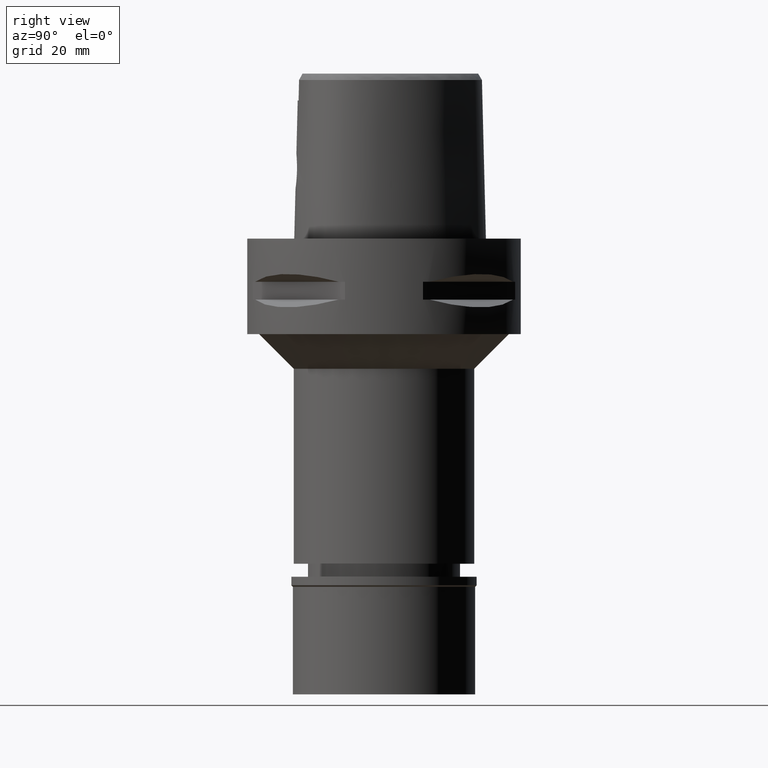
[diagram: clean part render]
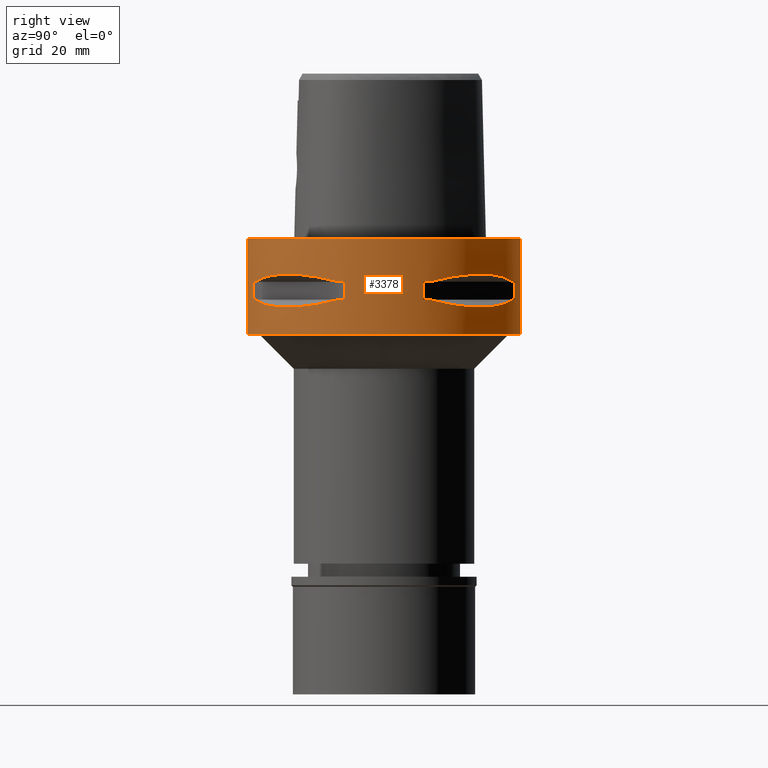
[diagram: same view with one face highlighted and labeled with its STEP entity id]
A machine part, right view. The second image highlights one B-rep face of the part: STEP entity #3378.
In plain terms, the highlighted cylindrical surface (partial cylindrical patch) has radius 31.5 mm, axis along (0, 0, -1).
Its self-contained STEP definition (entity closure, byte-faithful):
#20 = VERTEX_POINT ( 'NONE', #1837 ) ;
#29 = CARTESIAN_POINT ( 'NONE',  ( 13.25636937905766999, -28.62019653468112068, -14.74888225542022369 ) ) ;
#32 = CARTESIAN_POINT ( 'NONE',  ( 10.44775724750000023, -29.71690375017999841, -9.950000000002001244 ) ) ;
#69 = EDGE_CURVE ( 'NONE', #4559, #3506, #4363, .T. ) ;
#72 = CARTESIAN_POINT ( 'NONE',  ( 30.19251670572000279, -8.981198972016999349, -14.05000000000000071 ) ) ;
#127 = CARTESIAN_POINT ( 'NONE',  ( 26.42800887047804181, -17.14106442934815533, -15.43984550238795350 ) ) ;
#162 = EDGE_CURVE ( 'NONE', #4559, #481, #1147, .T. ) ;
#179 = AXIS2_PLACEMENT_3D ( 'NONE', #3911, #1974, #3838 ) ;
#206 = CARTESIAN_POINT ( 'NONE',  ( 10.44775724750000023, 29.71690375017999841, -9.950000000002001244 ) ) ;
#228 = CARTESIAN_POINT ( 'NONE',  ( 26.64486562695897121, 16.80193241490862022, -15.38992683736031708 ) ) ;
#230 = ORIENTED_EDGE ( 'NONE', *, *, #2636, .T. ) ;
#241 = ORIENTED_EDGE ( 'NONE', *, *, #1928, .F. ) ;
#269 = VERTEX_POINT ( 'NONE', #3351 ) ;
#280 = DIRECTION ( 'NONE',  ( 0.0000000000000000000, 0.0000000000000000000, 1.000000000000000000 ) ) ;
#363 = ORIENTED_EDGE ( 'NONE', *, *, #3219, .F. ) ;
#476 = CARTESIAN_POINT ( 'NONE',  ( 29.31542262584231651, 11.58970337495594194, -14.35229357167384912 ) ) ;
#481 = VERTEX_POINT ( 'NONE', #2387 ) ;
#489 = CARTESIAN_POINT ( 'NONE',  ( 23.08532645888790213, -21.46242677077769656, -15.83938991065623014 ) ) ;
#533 = VERTEX_POINT ( 'NONE', #4693 ) ;
#558 = CARTESIAN_POINT ( 'NONE',  ( 30.19251670572000279, 8.981198972019999616, -9.950000000000001066 ) ) ;
#566 = AXIS2_PLACEMENT_3D ( 'NONE', #3277, #2902, #4940 ) ;
#627 = CARTESIAN_POINT ( 'NONE',  ( 0.0000000000000000000, 31.50000000000000000, 0.0000000000000000000 ) ) ;
#644 = VECTOR ( 'NONE', #3933, 1000.000000000000000 ) ;
#654 = CARTESIAN_POINT ( 'NONE',  ( 27.11872488589068553, 16.03138450079309862, -15.26880420108148506 ) ) ;
#656 = DIRECTION ( 'NONE',  ( 0.0000000000000000000, 1.000000000000000000, 0.0000000000000000000 ) ) ;
#663 = CARTESIAN_POINT ( 'NONE',  ( 27.86285265926851551, -14.89252659056515427, -15.10765629751784012 ) ) ;
#679 = CARTESIAN_POINT ( 'NONE',  ( 29.71690375017999841, 10.44775724750000023, -14.05000000000000071 ) ) ;
#757 = CARTESIAN_POINT ( 'NONE',  ( 18.81455742163210587, -25.37277178168280756, -8.309746333130378915 ) ) ;
#780 = CARTESIAN_POINT ( 'NONE',  ( 10.44775724750000023, -29.71690375017999841, -14.05000000000000071 ) ) ;
#799 = CARTESIAN_POINT ( 'NONE',  ( 0.0000000000000000000, 31.50000000000000000, 0.0000000000000000000 ) ) ;
#803 = CARTESIAN_POINT ( 'NONE',  ( 16.03138450079309862, -27.11872488589068553, -15.26880420108148506 ) ) ;
#813 = ORIENTED_EDGE ( 'NONE', *, *, #4564, .T. ) ;
#846 = VERTEX_POINT ( 'NONE', #2801 ) ;
#869 = ORIENTED_EDGE ( 'NONE', *, *, #3529, .T. ) ;
#954 = CARTESIAN_POINT ( 'NONE',  ( 20.65093790435025767, -23.89673728057072211, -15.83935804902266931 ) ) ;
#991 = EDGE_CURVE ( 'NONE', #4315, #3935, #4417, .T. ) ;
#1017 = CARTESIAN_POINT ( 'NONE',  ( 28.92474506844681770, 12.70092055730909664, -9.353547358229723940 ) ) ;
#1041 = EDGE_CURVE ( 'NONE', #4763, #1088, #4171, .T. ) ;
#1045 = VECTOR ( 'NONE', #4475, 1000.000000000000000 ) ;
#1065 = CARTESIAN_POINT ( 'NONE',  ( 26.58330558444649583, 16.89910283486696940, -15.40446471307537202 ) ) ;
#1071 = B_SPLINE_CURVE_WITH_KNOTS ( 'NONE', 3,
 ( #4866, #1017, #2536, #1433, #2962, #2208, #4494, #4019, #4791, #206 ),
 .UNSPECIFIED., .F., .F.,
 ( 4, 2, 2, 2, 4 ),
 ( 0.0000000000000000000, 0.2500000000000001110, 0.5000000000000000000, 0.7500000000000000000, 1.000000000000000000 ),
 .UNSPECIFIED. ) ;
#1086 = CARTESIAN_POINT ( 'NONE',  ( 29.71690375017999841, -10.44775724750000023, -9.950000000002001244 ) ) ;
#1088 = VERTEX_POINT ( 'NONE', #2611 ) ;
#1102 = CARTESIAN_POINT ( 'NONE',  ( 0.0000000000000000000, -31.50000000000000000, -22.00000000000000000 ) ) ;
#1116 = EDGE_LOOP ( 'NONE', ( #3961, #241, #4926, #4156, #1423, #4639, #230, #2864 ) ) ;
#1147 = CIRCLE ( 'NONE', #566, 31.50000000000000711 ) ;
#1176 = CARTESIAN_POINT ( 'NONE',  ( 29.71690375017999841, -10.44775724750000023, -14.05000000000000071 ) ) ;
#1190 = DIRECTION ( 'NONE',  ( 0.2851174276831918153, -0.9584925938322735872, 0.0000000000000000000 ) ) ;
#1231 = AXIS2_PLACEMENT_3D ( 'NONE', #3307, #4828, #3714 ) ;
#1233 = DIRECTION ( 'NONE',  ( 0.9433937698468619626, 0.3316748332540863653, 0.0000000000000000000 ) ) ;
#1237 = CARTESIAN_POINT ( 'NONE',  ( 16.48208282229545318, -26.84474411198741350, -15.34094883778379348 ) ) ;
#1274 = CARTESIAN_POINT ( 'NONE',  ( 0.0000000000000000000, 31.50000000000000000, -22.00000000000000000 ) ) ;
#1296 = DIRECTION ( 'NONE',  ( 0.0000000000000000000, 0.0000000000000000000, -1.000000000000000000 ) ) ;
#1306 = DIRECTION ( 'NONE',  ( 0.0000000000000000000, 0.0000000000000000000, 1.000000000000000000 ) ) ;
#1365 = VERTEX_POINT ( 'NONE', #3582 ) ;
#1374 = AXIS2_PLACEMENT_3D ( 'NONE', #2354, #2710, #3460 ) ;
#1404 = EDGE_CURVE ( 'NONE', #533, #481, #4860, .T. ) ;
#1423 = ORIENTED_EDGE ( 'NONE', *, *, #162, .T. ) ;
#1425 = DIRECTION ( 'NONE',  ( 0.0000000000000000000, 0.0000000000000000000, -1.000000000000000000 ) ) ;
#1433 = CARTESIAN_POINT ( 'NONE',  ( 25.37277178168281466, 18.81455742163210232, -8.309746333130380691 ) ) ;
#1496 = CARTESIAN_POINT ( 'NONE',  ( 8.981198972016999349, -30.19251670572000279, -9.950000000000001066 ) ) ;
#1509 = CARTESIAN_POINT ( 'NONE',  ( 30.19251670572000279, 8.981198972016999349, -14.05000000000000071 ) ) ;
#1555 = CARTESIAN_POINT ( 'NONE',  ( 16.80193241490862022, -26.64486562695897121, -15.38992683736031708 ) ) ;
#1559 = CARTESIAN_POINT ( 'NONE',  ( 12.70092055730914815, -28.92474506844678572, -9.353547358229720388 ) ) ;
#1576 = LINE ( 'NONE', #72, #2175 ) ;
#1625 = EDGE_CURVE ( 'NONE', #4221, #1774, #3060, .T. ) ;
#1631 = CARTESIAN_POINT ( 'NONE',  ( 25.43927894892505392, -18.59229662064599609, -15.62866126334696482 ) ) ;
#1645 = CARTESIAN_POINT ( 'NONE',  ( 27.64634172017876068, 15.11986997311391612, -15.11207862404153524 ) ) ;
#1654 = CARTESIAN_POINT ( 'NONE',  ( 10.44775724750000023, 29.71690375017999841, -14.05000000000000071 ) ) ;
#1657 = CARTESIAN_POINT ( 'NONE',  ( 26.48642424310703447, -17.05047092244371854, -15.42670883407968674 ) ) ;
#1678 = DIRECTION ( 'NONE',  ( 0.9584925938322735872, -0.2851174276831918153, 0.0000000000000000000 ) ) ;
#1681 = CARTESIAN_POINT ( 'NONE',  ( 26.52527364208797778, -16.98999780422225214, -15.41788098766626369 ) ) ;
#1762 = CIRCLE ( 'NONE', #3450, 31.50000000000000000 ) ;
#1769 = FACE_BOUND ( 'NONE', #2589, .T. ) ;
#1774 = VERTEX_POINT ( 'NONE', #1102 ) ;
#1786 = CARTESIAN_POINT ( 'NONE',  ( 0.0000000000000000000, 0.0000000000000000000, -9.950000000000001066 ) ) ;
#1837 = CARTESIAN_POINT ( 'NONE',  ( 29.71690375017999841, 10.44775724750000023, -9.950000000002001244 ) ) ;
#1844 = EDGE_CURVE ( 'NONE', #4315, #4681, #2825, .T. ) ;
#1862 = CARTESIAN_POINT ( 'NONE',  ( 26.84474411198741350, 16.48208282229545318, -15.34094883778379348 ) ) ;
#1871 = CYLINDRICAL_SURFACE ( 'NONE', #1231, 31.50000000000000000 ) ;
#1872 = EDGE_CURVE ( 'NONE', #1774, #2270, #3297, .T. ) ;
#1903 = EDGE_CURVE ( 'NONE', #269, #1365, #4496, .T. ) ;
#1908 = VERTEX_POINT ( 'NONE', #799 ) ;
#1918 = AXIS2_PLACEMENT_3D ( 'NONE', #4732, #1306, #3664 ) ;
#1928 = EDGE_CURVE ( 'NONE', #846, #1088, #1576, .T. ) ;
#1974 = DIRECTION ( 'NONE',  ( 0.0000000000000000000, 0.0000000000000000000, 1.000000000000000000 ) ) ;
#1978 = CARTESIAN_POINT ( 'NONE',  ( 16.70616724746230730, -26.70521063584596888, -15.37546661818052307 ) ) ;
#2028 = EDGE_CURVE ( 'NONE', #2106, #4681, #2409, .T. ) ;
#2048 = CARTESIAN_POINT ( 'NONE',  ( 29.71690375017999841, -10.44775724750000023, -14.05000000000000071 ) ) ;
#2056 = CARTESIAN_POINT ( 'NONE',  ( 26.29071741524046146, -17.35163608579731687, -15.46976201925743055 ) ) ;
#2106 = VERTEX_POINT ( 'NONE', #558 ) ;
#2131 = DIRECTION ( 'NONE',  ( 0.0000000000000000000, 0.0000000000000000000, 1.000000000000000000 ) ) ;
#2175 = VECTOR ( 'NONE', #3542, 1000.000000000000000 ) ;
#2182 = CARTESIAN_POINT ( 'NONE',  ( 0.0000000000000000000, -31.50000000000000000, 0.0000000000000000000 ) ) ;
#2185 = VERTEX_POINT ( 'NONE', #3965 ) ;
#2208 = CARTESIAN_POINT ( 'NONE',  ( 20.64154884328073081, 23.90617837147176772, -8.160613588467994006 ) ) ;
#2213 = LINE ( 'NONE', #627, #1045 ) ;
#2237 = DIRECTION ( 'NONE',  ( 0.9433937698468619626, -0.3316748332540863653, 0.0000000000000000000 ) ) ;
#2248 = DIRECTION ( 'NONE',  ( 0.0000000000000000000, 0.0000000000000000000, -1.000000000000000000 ) ) ;
#2270 = VERTEX_POINT ( 'NONE', #1274 ) ;
#2310 = CARTESIAN_POINT ( 'NONE',  ( 0.0000000000000000000, 0.0000000000000000000, -9.950000000000001066 ) ) ;
#2316 = CARTESIAN_POINT ( 'NONE',  ( 29.71690375017999841, -10.44775724750000023, -9.950000000002001244 ) ) ;
#2330 = CARTESIAN_POINT ( 'NONE',  ( 18.86897208075735222, -25.32725744466094753, -15.69588095933972838 ) ) ;
#2354 = CARTESIAN_POINT ( 'NONE',  ( 0.0000000000000000000, 0.0000000000000000000, -22.00000000000000000 ) ) ;
#2387 = CARTESIAN_POINT ( 'NONE',  ( 8.981198972016999349, -30.19251670572000279, -14.05000000000000071 ) ) ;
#2409 = LINE ( 'NONE', #2731, #644 ) ;
#2436 = AXIS2_PLACEMENT_3D ( 'NONE', #4200, #1296, #3831 ) ;
#2473 = EDGE_LOOP ( 'NONE', ( #813, #4812, #3970, #2696 ) ) ;
#2536 = CARTESIAN_POINT ( 'NONE',  ( 27.88214534470561290, 14.84422749199038272, -8.906206096500939751 ) ) ;
#2545 = EDGE_CURVE ( 'NONE', #20, #269, #1071, .T. ) ;
#2567 = VECTOR ( 'NONE', #2248, 1000.000000000000000 ) ;
#2573 = ORIENTED_EDGE ( 'NONE', *, *, #2545, .T. ) ;
#2587 = CARTESIAN_POINT ( 'NONE',  ( 17.35163608579731687, 26.29071741524046146, -15.46976201925743055 ) ) ;
#2589 = EDGE_LOOP ( 'NONE', ( #3431, #363, #869, #4659, #4849, #3774, #2856, #2573 ) ) ;
#2611 = CARTESIAN_POINT ( 'NONE',  ( 30.19251670572000279, -8.981198972016999349, -9.950000000000001066 ) ) ;
#2636 = EDGE_CURVE ( 'NONE', #533, #2185, #4022, .T. ) ;
#2656 = AXIS2_PLACEMENT_3D ( 'NONE', #2310, #4191, #1190 ) ;
#2660 = CARTESIAN_POINT ( 'NONE',  ( 28.92472615205410591, -12.70097436183466577, -9.353533115209115678 ) ) ;
#2696 = ORIENTED_EDGE ( 'NONE', *, *, #4392, .F. ) ;
#2710 = DIRECTION ( 'NONE',  ( 0.0000000000000000000, 0.0000000000000000000, 1.000000000000000000 ) ) ;
#2716 = CARTESIAN_POINT ( 'NONE',  ( 20.64154884328072370, -23.90617837147175706, -8.160627831312647018 ) ) ;
#2731 = CARTESIAN_POINT ( 'NONE',  ( 30.19251670572000279, 8.981198972016999349, -9.950000000000001066 ) ) ;
#2735 = CARTESIAN_POINT ( 'NONE',  ( 15.11986997311391612, -27.64634172017876068, -15.11207862404153524 ) ) ;
#2753 = EDGE_CURVE ( 'NONE', #2185, #4763, #3353, .T. ) ;
#2801 = CARTESIAN_POINT ( 'NONE',  ( 30.19251670572000279, -8.981198972019999616, -14.05000000000000071 ) ) ;
#2825 = CIRCLE ( 'NONE', #2973, 31.50000000000000711 ) ;
#2840 = CARTESIAN_POINT ( 'NONE',  ( 26.54368690921823060, -16.96123479565122238, -15.41365572341632095 ) ) ;
#2856 = ORIENTED_EDGE ( 'NONE', *, *, #4233, .T. ) ;
#2864 = ORIENTED_EDGE ( 'NONE', *, *, #2753, .T. ) ;
#2870 = CARTESIAN_POINT ( 'NONE',  ( 8.981198972016999349, 30.19251670572000279, -14.05000000000000071 ) ) ;
#2902 = DIRECTION ( 'NONE',  ( 0.0000000000000000000, 0.0000000000000000000, -1.000000000000000000 ) ) ;
#2943 = CARTESIAN_POINT ( 'NONE',  ( 17.76952662671760308, 26.01217882835248929, -15.52665221626392800 ) ) ;
#2962 = CARTESIAN_POINT ( 'NONE',  ( 23.90617837147170022, 20.64154884328079120, -8.160627831312647018 ) ) ;
#2973 = AXIS2_PLACEMENT_3D ( 'NONE', #3158, #4688, #1233 ) ;
#2994 = CARTESIAN_POINT ( 'NONE',  ( 14.89252659056515427, 27.86285265926851551, -15.10765629751784012 ) ) ;
#3060 = LINE ( 'NONE', #2182, #2567 ) ;
#3092 = CARTESIAN_POINT ( 'NONE',  ( 14.84422749199042890, -27.88214534470558092, -8.906206096500941527 ) ) ;
#3158 = CARTESIAN_POINT ( 'NONE',  ( 0.0000000000000000000, 0.0000000000000000000, -14.05000000000000071 ) ) ;
#3219 = EDGE_CURVE ( 'NONE', #4329, #1365, #4395, .T. ) ;
#3277 = CARTESIAN_POINT ( 'NONE',  ( 0.0000000000000000000, 0.0000000000000000000, -14.05000000000000071 ) ) ;
#3297 = CIRCLE ( 'NONE', #1374, 31.50000000000000000 ) ;
#3307 = CARTESIAN_POINT ( 'NONE',  ( 0.0000000000000000000, 0.0000000000000000000, 4.700000000000000178 ) ) ;
#3324 = CARTESIAN_POINT ( 'NONE',  ( 20.18579225685413903, 24.23018836746430082, -15.78559396979327367 ) ) ;
#3351 = CARTESIAN_POINT ( 'NONE',  ( 10.44775724750000023, 29.71690375017999841, -9.950000000002001244 ) ) ;
#3353 = B_SPLINE_CURVE_WITH_KNOTS ( 'NONE', 3,
 ( #32, #1559, #3092, #757, #2716, #3796, #4242, #3369, #2660, #1086 ),
 .UNSPECIFIED., .F., .F.,
 ( 4, 2, 2, 2, 4 ),
 ( 0.0000000000000000000, 0.2499999999999998335, 0.4999999999999998890, 0.7499999999999998890, 1.000000000000000000 ),
 .UNSPECIFIED. ) ;
#3369 = CARTESIAN_POINT ( 'NONE',  ( 27.88210502983992711, -14.84430321578706469, -8.906184731970029134 ) ) ;
#3372 = CARTESIAN_POINT ( 'NONE',  ( 26.70521063584596888, 16.70616724746230730, -15.37546661818052307 ) ) ;
#3378 = ADVANCED_FACE ( 'NONE', ( #4056, #4151, #1769 ), #1871, .T. ) ;
#3431 = ORIENTED_EDGE ( 'NONE', *, *, #1903, .T. ) ;
#3450 = AXIS2_PLACEMENT_3D ( 'NONE', #4825, #4071, #656 ) ;
#3460 = DIRECTION ( 'NONE',  ( 0.0000000000000000000, -1.000000000000000000, 0.0000000000000000000 ) ) ;
#3464 = CARTESIAN_POINT ( 'NONE',  ( 11.58970337495594194, -29.31542262584231651, -14.35229357167384912 ) ) ;
#3506 = VERTEX_POINT ( 'NONE', #1176 ) ;
#3521 = CARTESIAN_POINT ( 'NONE',  ( 16.86571563436881149, -26.60451452154907059, -15.39949295786330197 ) ) ;
#3529 = EDGE_CURVE ( 'NONE', #4329, #3935, #3645, .T. ) ;
#3542 = DIRECTION ( 'NONE',  ( 0.0000000000000000000, 0.0000000000000000000, 1.000000000000000000 ) ) ;
#3563 = CARTESIAN_POINT ( 'NONE',  ( 28.62019653468112068, 13.25636937905766999, -14.74888225542022369 ) ) ;
#3573 = CARTESIAN_POINT ( 'NONE',  ( 26.01217882835248929, -17.76952662671760308, -15.52665221626392800 ) ) ;
#3582 = CARTESIAN_POINT ( 'NONE',  ( 8.981198972016999349, 30.19251670572000279, -9.950000000000001066 ) ) ;
#3620 = CIRCLE ( 'NONE', #1918, 31.50000000000001776 ) ;
#3645 = CIRCLE ( 'NONE', #2436, 31.50000000000001776 ) ;
#3664 = DIRECTION ( 'NONE',  ( 0.9584925938322735872, 0.2851174276831918153, 0.0000000000000000000 ) ) ;
#3672 = CARTESIAN_POINT ( 'NONE',  ( 24.23018836746430082, -20.18579225685413903, -15.78559396979327367 ) ) ;
#3681 = CARTESIAN_POINT ( 'NONE',  ( 10.44775724750000023, 29.71690375017999841, -14.05000000000000071 ) ) ;
#3692 = DIRECTION ( 'NONE',  ( 0.0000000000000000000, 0.0000000000000000000, -1.000000000000000000 ) ) ;
#3714 = DIRECTION ( 'NONE',  ( 0.0000000000000000000, -1.000000000000000000, 0.0000000000000000000 ) ) ;
#3730 = CARTESIAN_POINT ( 'NONE',  ( 21.46242677077769656, 23.08532645888790213, -15.83938991065623014 ) ) ;
#3753 = CARTESIAN_POINT ( 'NONE',  ( 8.981198972019999616, 30.19251670572000279, -14.05000000000000071 ) ) ;
#3774 = ORIENTED_EDGE ( 'NONE', *, *, #2028, .F. ) ;
#3796 = CARTESIAN_POINT ( 'NONE',  ( 23.90617837147170377, -20.64154884328079120, -8.160613588467994006 ) ) ;
#3831 = DIRECTION ( 'NONE',  ( 0.2851174276831918153, 0.9584925938322735872, 0.0000000000000000000 ) ) ;
#3838 = DIRECTION ( 'NONE',  ( 0.3316748332540863653, 0.9433937698468619626, 0.0000000000000000000 ) ) ;
#3911 = CARTESIAN_POINT ( 'NONE',  ( 0.0000000000000000000, 0.0000000000000000000, -9.950000000000001066 ) ) ;
#3925 = CARTESIAN_POINT ( 'NONE',  ( 29.71690375017999841, 10.44775724750000023, -14.05000000000000071 ) ) ;
#3933 = DIRECTION ( 'NONE',  ( 0.0000000000000000000, 0.0000000000000000000, -1.000000000000000000 ) ) ;
#3935 = VERTEX_POINT ( 'NONE', #1654 ) ;
#3939 = VECTOR ( 'NONE', #1425, 1000.000000000000000 ) ;
#3961 = ORIENTED_EDGE ( 'NONE', *, *, #1041, .T. ) ;
#3965 = CARTESIAN_POINT ( 'NONE',  ( 10.44775724750000023, -29.71690375017999841, -9.950000000002001244 ) ) ;
#3970 = ORIENTED_EDGE ( 'NONE', *, *, #1872, .T. ) ;
#4009 = CARTESIAN_POINT ( 'NONE',  ( 0.0000000000000000000, 0.0000000000000000000, -14.05000000000000071 ) ) ;
#4019 = CARTESIAN_POINT ( 'NONE',  ( 14.84430321578704337, 27.88210502983994488, -8.906184731970029134 ) ) ;
#4022 = CIRCLE ( 'NONE', #2656, 31.50000000000001776 ) ;
#4042 = EDGE_CURVE ( 'NONE', #846, #3506, #4082, .T. ) ;
#4056 = FACE_OUTER_BOUND ( 'NONE', #2473, .T. ) ;
#4067 = CARTESIAN_POINT ( 'NONE',  ( 16.96123479565122238, 26.54368690921823060, -15.41365572341632095 ) ) ;
#4071 = DIRECTION ( 'NONE',  ( 0.0000000000000000000, 0.0000000000000000000, -1.000000000000000000 ) ) ;
#4082 = CIRCLE ( 'NONE', #4947, 31.50000000000001776 ) ;
#4093 = CARTESIAN_POINT ( 'NONE',  ( 17.14106442934815533, 26.42800887047804181, -15.43984550238795350 ) ) ;
#4121 = CARTESIAN_POINT ( 'NONE',  ( 12.73197616787390629, 28.91382665369116722, -14.65467361753813513 ) ) ;
#4151 = FACE_BOUND ( 'NONE', #1116, .T. ) ;
#4156 = ORIENTED_EDGE ( 'NONE', *, *, #69, .F. ) ;
#4171 = CIRCLE ( 'NONE', #4896, 31.50000000000000711 ) ;
#4191 = DIRECTION ( 'NONE',  ( 0.0000000000000000000, 0.0000000000000000000, 1.000000000000000000 ) ) ;
#4200 = CARTESIAN_POINT ( 'NONE',  ( 0.0000000000000000000, 0.0000000000000000000, -14.05000000000000071 ) ) ;
#4221 = VERTEX_POINT ( 'NONE', #4382 ) ;
#4233 = EDGE_CURVE ( 'NONE', #2106, #20, #3620, .T. ) ;
#4242 = CARTESIAN_POINT ( 'NONE',  ( 25.37272068398773683, -18.81462633032059273, -8.309724968599470074 ) ) ;
#4315 = VERTEX_POINT ( 'NONE', #679 ) ;
#4329 = VERTEX_POINT ( 'NONE', #3753 ) ;
#4363 = B_SPLINE_CURVE_WITH_KNOTS ( 'NONE', 3,
 ( #780, #3464, #29, #2735, #803, #1237, #1978, #1555, #3521, #4623, #2330, #954, #489, #3672, #1631, #3573, #2056, #127, #1657, #1681, #2840, #663, #4512, #2048 ),
 .UNSPECIFIED., .F., .F.,
 ( 4, 1, 1, 1, 1, 1, 2, 2, 2, 1, 1, 1, 1, 1, 2, 2, 4 ),
 ( 0.0000000000000000000, 0.1250000000000017486, 0.1875000000000026090, 0.2187500000000033029, 0.2343750000000038858, 0.2421875000000042744, 0.2460937500000044686, 0.2500000000000046629, 0.5000000000000101030, 0.6250000000000126565, 0.6875000000000138778, 0.7187500000000146549, 0.7343750000000150990, 0.7421875000000150990, 0.7460937500000149880, 0.7500000000000149880, 1.000000000000000000 ),
 .UNSPECIFIED. ) ;
#4382 = CARTESIAN_POINT ( 'NONE',  ( 0.0000000000000000000, -31.50000000000000000, 0.0000000000000000000 ) ) ;
#4392 = EDGE_CURVE ( 'NONE', #1908, #2270, #2213, .T. ) ;
#4395 = LINE ( 'NONE', #2870, #4827 ) ;
#4417 = B_SPLINE_CURVE_WITH_KNOTS ( 'NONE', 3,
 ( #3925, #476, #3563, #1645, #654, #1862, #3372, #228, #4498, #1065, #4449, #4823, #3730, #3324, #4868, #2943, #2587, #4093, #4472, #4425, #4067, #2994, #4121, #3681 ),
 .UNSPECIFIED., .F., .F.,
 ( 4, 1, 1, 1, 1, 1, 2, 2, 2, 1, 1, 1, 1, 1, 2, 2, 4 ),
 ( 0.0000000000000000000, 0.1250000000000017486, 0.1875000000000026090, 0.2187500000000033029, 0.2343750000000038858, 0.2421875000000042744, 0.2460937500000044686, 0.2500000000000046629, 0.5000000000000101030, 0.6250000000000126565, 0.6875000000000138778, 0.7187500000000146549, 0.7343750000000150990, 0.7421875000000150990, 0.7460937500000149880, 0.7500000000000149880, 1.000000000000000000 ),
 .UNSPECIFIED. ) ;
#4425 = CARTESIAN_POINT ( 'NONE',  ( 16.98999780422225214, 26.52527364208797778, -15.41788098766626369 ) ) ;
#4449 = CARTESIAN_POINT ( 'NONE',  ( 25.32725744466094753, 18.86897208075735222, -15.69588095933972838 ) ) ;
#4472 = CARTESIAN_POINT ( 'NONE',  ( 17.05047092244371854, 26.48642424310703447, -15.42670883407968674 ) ) ;
#4475 = DIRECTION ( 'NONE',  ( 0.0000000000000000000, 0.0000000000000000000, -1.000000000000000000 ) ) ;
#4494 = CARTESIAN_POINT ( 'NONE',  ( 18.81462633032052167, 25.37272068398778657, -8.309724968599470074 ) ) ;
#4496 = CIRCLE ( 'NONE', #179, 31.50000000000000711 ) ;
#4498 = CARTESIAN_POINT ( 'NONE',  ( 26.60451452154907059, 16.86571563436881149, -15.39949295786330197 ) ) ;
#4512 = CARTESIAN_POINT ( 'NONE',  ( 28.91382665369116722, -12.73197616787390629, -14.65467361753813513 ) ) ;
#4559 = VERTEX_POINT ( 'NONE', #4893 ) ;
#4564 = EDGE_CURVE ( 'NONE', #1908, #4221, #1762, .T. ) ;
#4623 = CARTESIAN_POINT ( 'NONE',  ( 16.89910283486696940, -26.58330558444649583, -15.40446471307537202 ) ) ;
#4639 = ORIENTED_EDGE ( 'NONE', *, *, #1404, .F. ) ;
#4659 = ORIENTED_EDGE ( 'NONE', *, *, #991, .F. ) ;
#4681 = VERTEX_POINT ( 'NONE', #1509 ) ;
#4688 = DIRECTION ( 'NONE',  ( 0.0000000000000000000, 0.0000000000000000000, -1.000000000000000000 ) ) ;
#4693 = CARTESIAN_POINT ( 'NONE',  ( 8.981198972019999616, -30.19251670572000279, -9.950000000000001066 ) ) ;
#4732 = CARTESIAN_POINT ( 'NONE',  ( 0.0000000000000000000, 0.0000000000000000000, -9.950000000000001066 ) ) ;
#4763 = VERTEX_POINT ( 'NONE', #2316 ) ;
#4791 = CARTESIAN_POINT ( 'NONE',  ( 12.70097436183467110, 28.92472615205408104, -9.353533115209115678 ) ) ;
#4812 = ORIENTED_EDGE ( 'NONE', *, *, #1625, .T. ) ;
#4823 = CARTESIAN_POINT ( 'NONE',  ( 23.89673728057072211, 20.65093790435025767, -15.83935804902266931 ) ) ;
#4825 = CARTESIAN_POINT ( 'NONE',  ( 0.0000000000000000000, 0.0000000000000000000, 0.0000000000000000000 ) ) ;
#4827 = VECTOR ( 'NONE', #2131, 1000.000000000000000 ) ;
#4828 = DIRECTION ( 'NONE',  ( 0.0000000000000000000, 0.0000000000000000000, -1.000000000000000000 ) ) ;
#4849 = ORIENTED_EDGE ( 'NONE', *, *, #1844, .T. ) ;
#4860 = LINE ( 'NONE', #1496, #3939 ) ;
#4866 = CARTESIAN_POINT ( 'NONE',  ( 29.71690375017999841, 10.44775724750000023, -9.950000000002001244 ) ) ;
#4868 = CARTESIAN_POINT ( 'NONE',  ( 18.59229662064599609, 25.43927894892505392, -15.62866126334696482 ) ) ;
#4893 = CARTESIAN_POINT ( 'NONE',  ( 10.44775724750000023, -29.71690375017999841, -14.05000000000000071 ) ) ;
#4896 = AXIS2_PLACEMENT_3D ( 'NONE', #1786, #280, #2237 ) ;
#4926 = ORIENTED_EDGE ( 'NONE', *, *, #4042, .T. ) ;
#4940 = DIRECTION ( 'NONE',  ( 0.3316748332540863653, -0.9433937698468619626, 0.0000000000000000000 ) ) ;
#4947 = AXIS2_PLACEMENT_3D ( 'NONE', #4009, #3692, #1678 ) ;